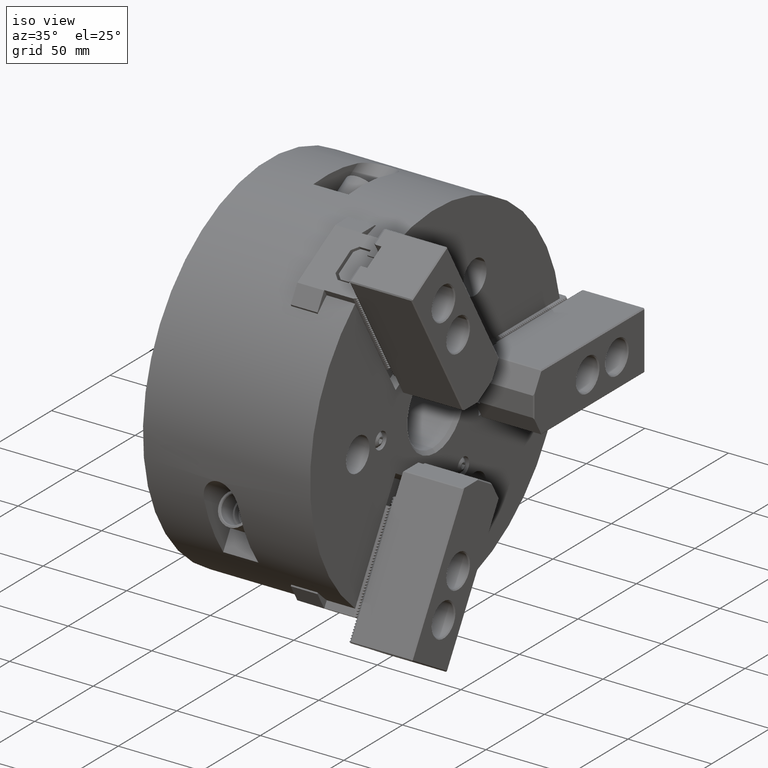
[diagram: clean part render]
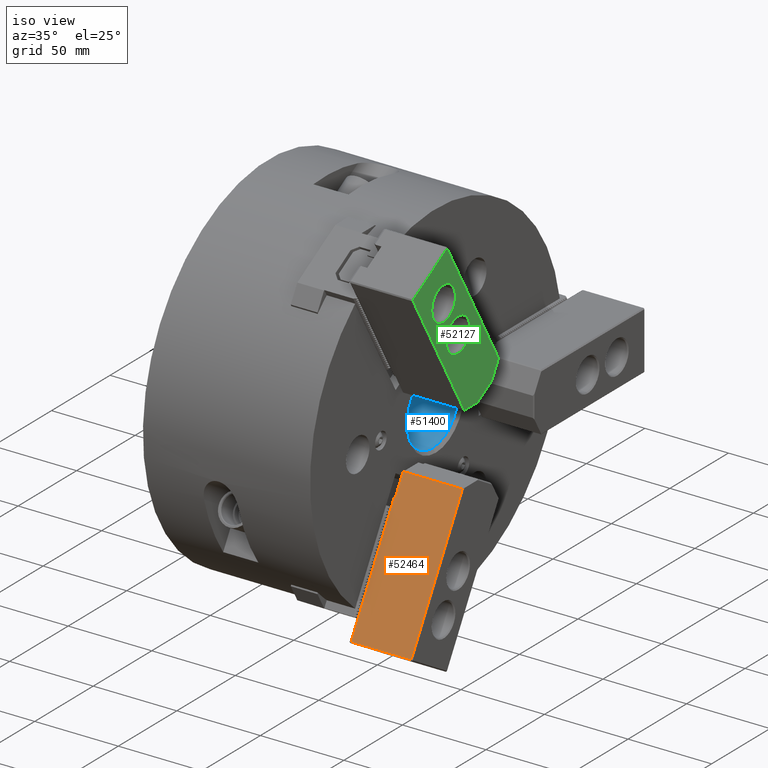
[diagram: same view with three faces highlighted in distinct colors, each labeled with its STEP entity id]
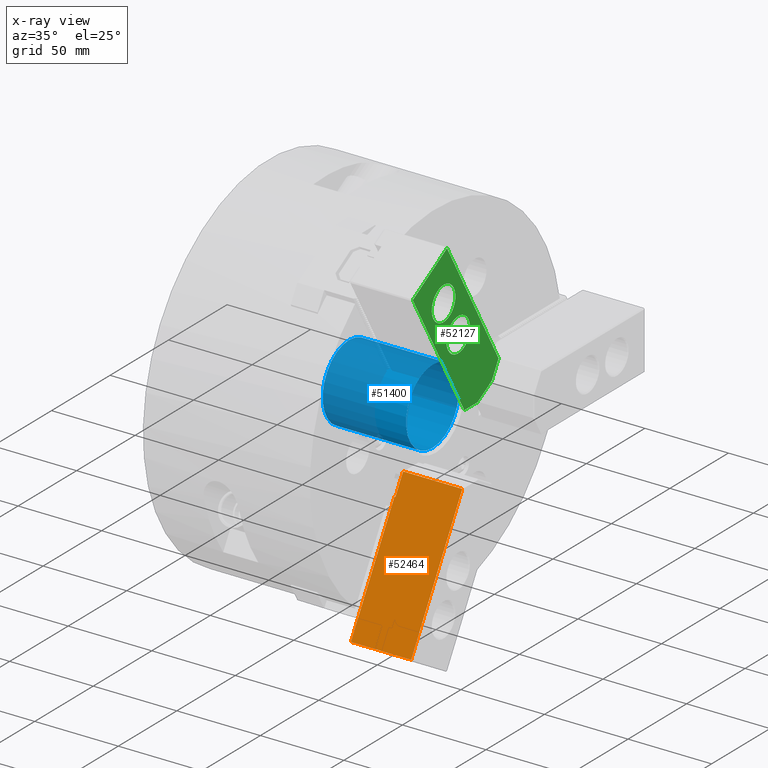
[diagram: x-ray of the same camera — body ghosted, the three highlighted faces saturated]
A machine part, iso view with three faces highlighted in distinct colors.
The next image is the same camera in x-ray (body ghosted, the three faces saturated) — at least one of them is partly hidden behind the body in this view.
Their STEP definitions:

[orange] entity #52464 — the highlighted planar face has unit normal (0, -0.866, 0.5).
#3798=LINE('',#80917,#10298);
#3799=LINE('',#80920,#10299);
#3800=LINE('',#80922,#10300);
#3801=LINE('',#80924,#10301);
#3802=LINE('',#80926,#10302);
#3803=LINE('',#80928,#10303);
#3804=LINE('',#80930,#10304);
#10298=VECTOR('',#66245,1000.);
#10299=VECTOR('',#66246,1000.);
#10300=VECTOR('',#66247,1000.);
#10301=VECTOR('',#66248,1000.);
#10302=VECTOR('',#66249,1000.);
#10303=VECTOR('',#66250,1000.);
#10304=VECTOR('',#66251,1000.);
#14513=PLANE('',#56368);
#24613=ORIENTED_EDGE('',*,*,#34988,.T.);
#24614=ORIENTED_EDGE('',*,*,#34989,.T.);
#24615=ORIENTED_EDGE('',*,*,#34990,.F.);
#24616=ORIENTED_EDGE('',*,*,#34991,.F.);
#24617=ORIENTED_EDGE('',*,*,#34992,.T.);
#24618=ORIENTED_EDGE('',*,*,#34993,.T.);
#24619=ORIENTED_EDGE('',*,*,#34994,.T.);
#34988=EDGE_CURVE('',#45191,#45192,#3798,.T.);
#34989=EDGE_CURVE('',#45192,#45193,#3799,.T.);
#34990=EDGE_CURVE('',#45194,#45193,#3800,.T.);
#34991=EDGE_CURVE('',#45195,#45194,#3801,.T.);
#34992=EDGE_CURVE('',#45195,#45196,#3802,.T.);
#34993=EDGE_CURVE('',#45196,#45197,#3803,.T.);
#34994=EDGE_CURVE('',#45197,#45191,#3804,.T.);
#40972=EDGE_LOOP('',(#24613,#24614,#24615,#24616,#24617,#24618,#24619));
#45191=VERTEX_POINT('',#80918);
#45192=VERTEX_POINT('',#80919);
#45193=VERTEX_POINT('',#80921);
#45194=VERTEX_POINT('',#80923);
#45195=VERTEX_POINT('',#80925);
#45196=VERTEX_POINT('',#80927);
#45197=VERTEX_POINT('',#80929);
#49439=FACE_BOUND('',#40972,.T.);
#52464=ADVANCED_FACE('',(#49439),#14513,.T.);
#56368=AXIS2_PLACEMENT_3D('',#80916,#66243,#66244);
#66243=DIRECTION('',(0.,-0.866025403784443,0.499999999999992));
#66244=DIRECTION('',(-1.,0.,0.));
#66245=DIRECTION('',(0.,-0.499999999999992,-0.866025403784443));
#66246=DIRECTION('',(1.,0.,0.));
#66247=DIRECTION('',(0.,-0.499999999999992,-0.866025403784443));
#66248=DIRECTION('',(1.,0.,0.));
#66249=DIRECTION('',(-0.65465367070799,-0.377964473009216,-0.654653670707971));
#66250=DIRECTION('',(0.,-0.499999999999992,-0.866025403784443));
#66251=DIRECTION('',(-1.,0.,0.));
#80916=CARTESIAN_POINT('',(2.60000000000051,-29.0404256893393,-15.299492767365));
#80917=CARTESIAN_POINT('',(2.60000000000051,-29.0404256893393,-15.299492767365));
#80918=CARTESIAN_POINT('',(2.60000000000051,-39.0404256893391,-32.6200008430539));
#80919=CARTESIAN_POINT('',(2.60000000000051,-76.2404256893386,-97.0522908846165));
#80920=CARTESIAN_POINT('',(38.6,-76.2404256893386,-97.0522908846165));
#80921=CARTESIAN_POINT('',(38.6,-76.2404256893386,-97.0522908846165));
#80922=CARTESIAN_POINT('',(38.6,-29.0404256893393,-15.299492767365));
#80923=CARTESIAN_POINT('',(38.6,-32.5333948179362,-21.3494927673647));
#80924=CARTESIAN_POINT('',(1.20000000000001,-32.5333948179362,-21.3494927673647));
#80925=CARTESIAN_POINT('',(3.40000000000001,-32.5333948179362,-21.3494927673647));
#80926=CARTESIAN_POINT('',(6.51428571428571,-30.7353611224601,-18.2352070530791));
#80927=CARTESIAN_POINT('',(3.20000000000001,-32.6488648717742,-21.5494927673647));
#80928=CARTESIAN_POINT('',(3.20000000000001,-39.0404256893391,-32.6200008430539));
#80929=CARTESIAN_POINT('',(3.20000000000001,-39.0404256893391,-32.6200008430539));
#80930=CARTESIAN_POINT('',(1.20000000000001,-39.0404256893391,-32.6200008430539));

[blue] entity #51400 — the highlighted cylindrical surface (bore or boss wall) has radius 22.5 mm, axis along (1, 0, 0).
#15647=CYLINDRICAL_SURFACE('',#55057,22.5);
#19095=ORIENTED_EDGE('',*,*,#32225,.T.);
#19096=ORIENTED_EDGE('',*,*,#32223,.F.);
#32223=EDGE_CURVE('',#43312,#43312,#38383,.T.);
#32225=EDGE_CURVE('',#43314,#43314,#38385,.T.);
#38383=CIRCLE('',#55055,22.5);
#38385=CIRCLE('',#55058,22.5);
#39732=EDGE_LOOP('',(#19095));
#39733=EDGE_LOOP('',(#19096));
#43312=VERTEX_POINT('',#75209);
#43314=VERTEX_POINT('',#75214);
#48187=FACE_BOUND('',#39732,.T.);
#48188=FACE_BOUND('',#39733,.T.);
#51400=ADVANCED_FACE('',(#48187,#48188),#15647,.F.);
#55055=AXIS2_PLACEMENT_3D('',#75208,#61101,#61102);
#55057=AXIS2_PLACEMENT_3D('',#75212,#61105,#61106);
#55058=AXIS2_PLACEMENT_3D('',#75213,#61107,#61108);
#61101=DIRECTION('',(1.,0.,0.));
#61102=DIRECTION('',(0.,0.,-1.));
#61105=DIRECTION('',(1.,0.,0.));
#61106=DIRECTION('',(0.,0.,-1.));
#61107=DIRECTION('',(1.,0.,0.));
#61108=DIRECTION('',(0.,0.,-1.));
#75208=CARTESIAN_POINT('',(-52.,0.,0.));
#75209=CARTESIAN_POINT('',(-52.,0.,-22.5));
#75212=CARTESIAN_POINT('',(6.30679879879881,0.,0.));
#75213=CARTESIAN_POINT('',(-1.99999999999998,0.,0.));
#75214=CARTESIAN_POINT('',(-1.99999999999998,0.,-22.5));

[green] entity #52127 — the highlighted planar face has unit normal (1, 0, 0).
#2822=LINE('',#78936,#9322);
#2825=LINE('',#78946,#9325);
#2826=LINE('',#78949,#9326);
#2827=LINE('',#78951,#9327);
#2828=LINE('',#78952,#9328);
#2829=LINE('',#78954,#9329);
#9322=VECTOR('',#64573,1000.);
#9325=VECTOR('',#64582,1000.);
#9326=VECTOR('',#64583,1000.);
#9327=VECTOR('',#64584,1000.);
#9328=VECTOR('',#64585,1000.);
#9329=VECTOR('',#64586,1000.);
#14182=PLANE('',#56021);
#22636=ORIENTED_EDGE('',*,*,#34005,.F.);
#22637=ORIENTED_EDGE('',*,*,#34006,.F.);
#22638=ORIENTED_EDGE('',*,*,#34007,.F.);
#22639=ORIENTED_EDGE('',*,*,#34008,.T.);
#22640=ORIENTED_EDGE('',*,*,#34009,.T.);
#22641=ORIENTED_EDGE('',*,*,#34002,.T.);
#22642=ORIENTED_EDGE('',*,*,#34010,.T.);
#22643=ORIENTED_EDGE('',*,*,#34011,.F.);
#34002=EDGE_CURVE('',#44534,#44533,#2822,.T.);
#34005=EDGE_CURVE('',#44536,#44536,#38616,.T.);
#34006=EDGE_CURVE('',#44537,#44537,#38617,.T.);
#34007=EDGE_CURVE('',#44538,#44539,#2825,.T.);
#34008=EDGE_CURVE('',#44538,#44540,#2826,.T.);
#34009=EDGE_CURVE('',#44540,#44534,#2827,.T.);
#34010=EDGE_CURVE('',#44533,#44541,#2828,.T.);
#34011=EDGE_CURVE('',#44539,#44541,#2829,.T.);
#38616=CIRCLE('',#56022,10.1);
#38617=CIRCLE('',#56023,10.1);
#40623=EDGE_LOOP('',(#22636));
#40624=EDGE_LOOP('',(#22637));
#40625=EDGE_LOOP('',(#22638,#22639,#22640,#22641,#22642,#22643));
#44533=VERTEX_POINT('',#78935);
#44534=VERTEX_POINT('',#78937);
#44536=VERTEX_POINT('',#78943);
#44537=VERTEX_POINT('',#78945);
#44538=VERTEX_POINT('',#78947);
#44539=VERTEX_POINT('',#78948);
#44540=VERTEX_POINT('',#78950);
#44541=VERTEX_POINT('',#78953);
#49090=FACE_BOUND('',#40623,.T.);
#49091=FACE_BOUND('',#40624,.T.);
#49092=FACE_BOUND('',#40625,.T.);
#52127=ADVANCED_FACE('',(#49090,#49091,#49092),#14182,.T.);
#56021=AXIS2_PLACEMENT_3D('',#78941,#64576,#64577);
#56022=AXIS2_PLACEMENT_3D('',#78942,#64578,#64579);
#56023=AXIS2_PLACEMENT_3D('',#78944,#64580,#64581);
#64573=DIRECTION('',(0.,-0.500000000000004,0.866025403784436));
#64576=DIRECTION('',(1.,0.,0.));
#64577=DIRECTION('',(0.,0.866025403784436,0.500000000000004));
#64578=DIRECTION('',(1.,0.,0.));
#64579=DIRECTION('',(0.,0.866025403784436,0.500000000000004));
#64580=DIRECTION('',(1.,0.,0.));
#64581=DIRECTION('',(0.,0.866025403784436,0.500000000000004));
#64582=DIRECTION('',(0.,-1.,-7.27196081129478E-15));
#64583=DIRECTION('',(0.,0.866025403784436,0.500000000000004));
#64584=DIRECTION('',(0.,0.499999999999998,0.86602540378444));
#64585=DIRECTION('',(0.,-0.866025403784436,-0.500000000000004));
#64586=DIRECTION('',(0.,-0.500000000000004,0.866025403784436));
#78935=CARTESIAN_POINT('',(39.2,-46.449151798974,114.25229088472));
#78936=CARTESIAN_POINT('',(39.2,0.750848201026416,32.4994927674694));
#78937=CARTESIAN_POINT('',(39.2,-2.39571076611731,37.9494927675737));
#78941=CARTESIAN_POINT('',(39.2,0.750848201026416,32.4994927674694));
#78942=CARTESIAN_POINT('',(39.2,-49.3849811231122,85.5372964360595));
#78943=CARTESIAN_POINT('',(39.2,-40.6381245448894,90.5872964360596));
#78944=CARTESIAN_POINT('',(39.2,-36.8849811231121,63.8866613414486));
#78945=CARTESIAN_POINT('',(39.2,-28.1381245448893,68.9366613414487));
#78946=CARTESIAN_POINT('',(39.2,-32.0137795756659,21.0494927673641));
#78947=CARTESIAN_POINT('',(39.2,-20.2811335458191,21.0494927673642));
#78948=CARTESIAN_POINT('',(39.2,-31.6673694143939,21.0494927673641));
#78949=CARTESIAN_POINT('',(39.2,0.450848201026414,33.01910800974));
#78950=CARTESIAN_POINT('',(39.2,-8.08882870040472,28.0887232519063));
#78951=CARTESIAN_POINT('',(39.2,-2.22250568548132,38.2494927673643));
#78952=CARTESIAN_POINT('',(39.2,-61.0849811231123,105.802290884615));
#78953=CARTESIAN_POINT('',(39.2,-75.7208104472506,97.3522908845106));
#78954=CARTESIAN_POINT('',(39.2,-28.5208104472502,15.5994927672598));